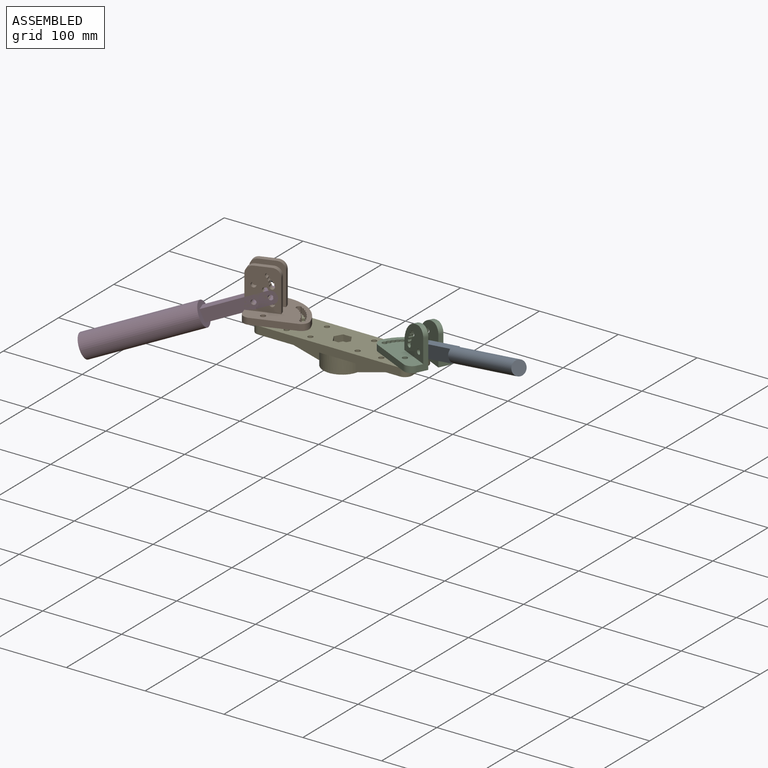
[diagram: assembled view]
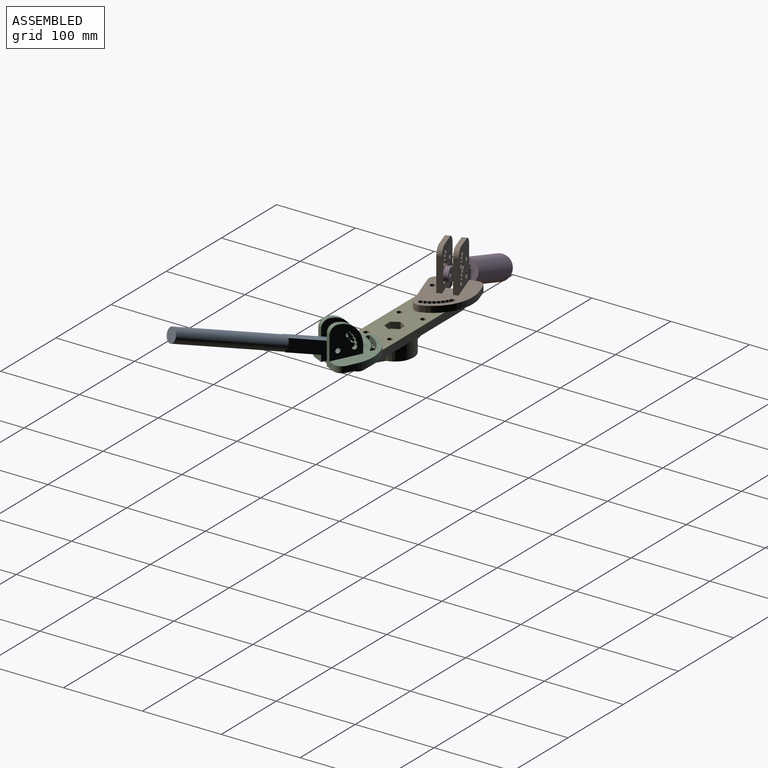
[diagram: assembled view, second angle]
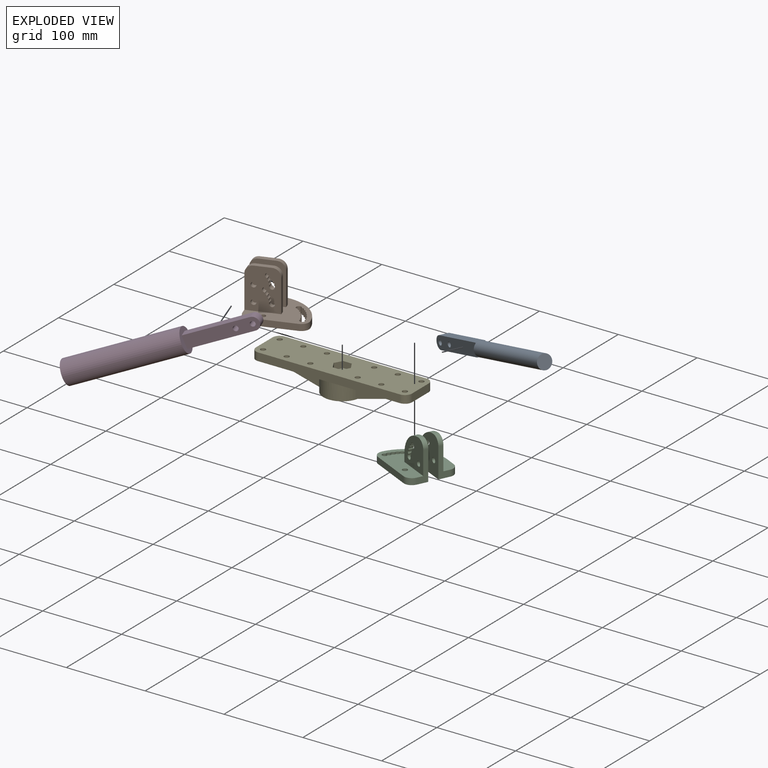
[diagram: exploded view]
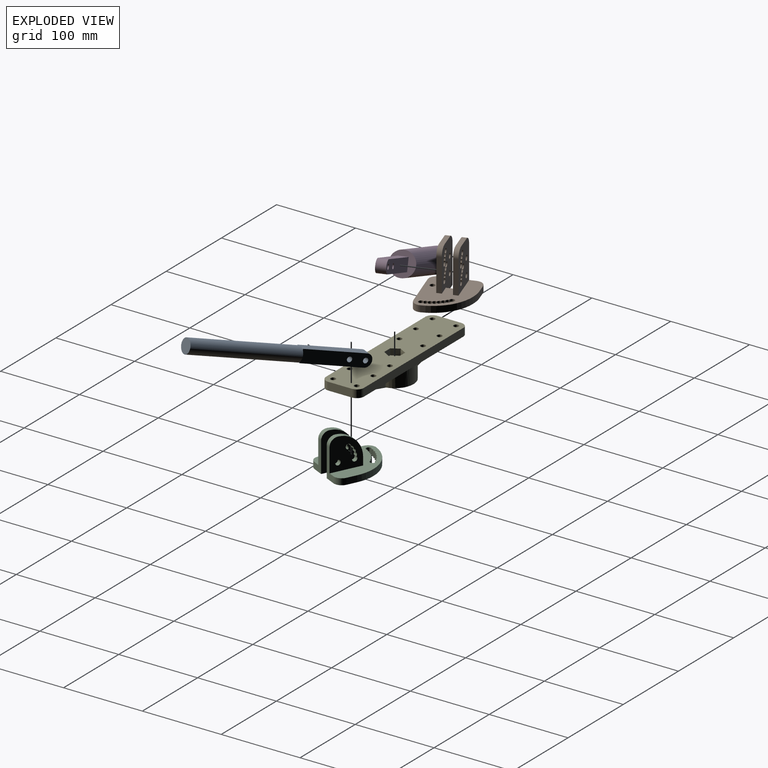
[diagram: exploded view, second angle]
ASSEMBLY  parts=5 mates=4
PART A: 17 faces, bbox 228x18x18 mm
  f0: plane 1.88x1.29mm, normal (1,0,0), area 1.1mm2, adj f3,f8,f13
  f1: plane 1.88x1.29mm, normal (1,0,0), area 1.1mm2, adj f3,f7,f13
  f2: plane 1.88x1.29mm, normal (1,0,0), area 1.1mm2, adj f5,f7,f13
  f3: plane 88x16mm, normal (0,1,0), area 1316.2mm2, adj f0,f1,f4,f6,f7,f8,f10,f16
  f4: cylinder r=8mm len=16mm, axis (0,-1,0), area 301.6mm2, adj f3,f5,f7,f8
  f5: plane 88x16mm, normal (0,-1,0), area 1316.2mm2, adj f2,f4,f6,f7,f8,f9,f12,f16
  f6: cylinder r=3.2mm len=12mm, axis (0,-1,0), area 241.3mm2, adj f3,f5
  f7: plane 80x12mm, normal (0,0,1), area 960mm2, adj f1,f2,f3,f4,f5,f11
  f8: plane 80x12mm, normal (0,0,-1), area 960mm2, adj f0,f3,f4,f5,f9,f15
  f9: plane 1.88x1.29mm, normal (1,0,0), area 1.1mm2, adj f5,f8,f13
  f10: plane 13.42x3mm, normal (-1,0,0), area 27.9mm2, adj f3,f13
  f11: plane 8.25x1mm, normal (-1,0,0), area 5.6mm2, adj f7,f13
  f12: plane 13.42x3mm, normal (-1,0,0), area 27.9mm2, adj f5,f13
  f13: cylinder r=9mm len=140mm, axis (-1,0,0), area 7916.8mm2, adj f0,f1,f2,f9,f10,f11,f12,f14
  f14: plane 18x18mm, normal (1,0,0), area 254.5mm2, adj f13
  f15: plane 8.25x1mm, normal (-1,0,0), area 5.6mm2, adj f8,f13
  f16: cylinder r=3.2mm len=12mm, axis (0,-1,0), area 241.3mm2, adj f3,f5
PART B: 70 faces, bbox 73.8x60x59.9 mm
  f0: plane 49.87x14mm, normal (-1,0,0), area 363.2mm2, adj f20,f24,f28,f60,f63,f69
  f1: plane 20x6mm, normal (0,0,1), area 120mm2, adj f27,f61,f65,f66
  f2: plane 41.87x6mm, normal (1,0,0), area 251.2mm2, adj f20,f28,f60,f64
  f3: cylinder r=3.2mm len=6.4mm, axis (0,-1,0), area 90.1mm2, adj f4,f5,f28,f60
  f4: cylinder r=3.2mm len=6mm, axis (0,-1,0), area 25.5mm2, adj f3,f7,f28,f60
  f5: cylinder r=3.2mm len=6mm, axis (0,-1,0), area 34.1mm2, adj f3,f6,f28,f60
  f6: cylinder r=3.2mm len=6mm, axis (0,-1,0), area 34.1mm2, adj f5,f9,f28,f60
  f7: cylinder r=3.2mm len=6mm, axis (0,-1,0), area 25.5mm2, adj f4,f8,f28,f60
  f8: cylinder r=3.2mm len=6mm, axis (0,-1,0), area 25.5mm2, adj f7,f10,f28,f60
  f9: cylinder r=3.2mm len=6mm, axis (0,-1,0), area 34.1mm2, adj f6,f10,f28,f60
  f10: cylinder r=3.2mm len=6.4mm, axis (0,-1,0), area 90.1mm2, adj f8,f9,f28,f60
  f11: cylinder r=3.2mm len=6.4mm, axis (0,-1,0), area 120.6mm2, adj f28,f60
  f12: cylinder r=3.2mm len=6.4mm, axis (0,-1,0), area 120.6mm2, adj f28,f60
  f13: cylinder r=3.2mm len=6mm, axis (0,-1,0), area 34.1mm2, adj f16,f18,f28,f60
  f14: cylinder r=3.2mm len=6mm, axis (0,-1,0), area 25.5mm2, adj f17,f18,f28,f60
  f15: cylinder r=3.2mm len=6.4mm, axis (0,-1,0), area 90.1mm2, adj f16,f17,f28,f60
  f16: cylinder r=3.2mm len=6mm, axis (0,-1,0), area 34.1mm2, adj f13,f15,f28,f60
  f17: cylinder r=3.2mm len=6mm, axis (0,-1,0), area 25.5mm2, adj f14,f15,f28,f60
  f18: cylinder r=3.2mm len=6.4mm, axis (0,-1,0), area 90.1mm2, adj f13,f14,f28,f60
  f19: plane 49.87x14mm, normal (-1,0,0), area 363.2mm2, adj f20,f24,f27,f61,f65,f68
  f20: plane 73.84x60mm, normal (0,0,1), area 2772.9mm2, adj f0,f2,f19,f21,f22,f23,f26,f27
  f21: cylinder r=51mm len=50.99mm, axis (0,0,1), area 630.9mm2, adj f20,f23,f24,f67
  f22: plane 53.84x8mm, normal (0,-1,0), area 430.7mm2, adj f20,f24,f67,f68
  f23: plane 12.86x8mm, normal (0,1,0), area 102.8mm2, adj f20,f21,f24,f69
  f24: plane 73.84x60mm, normal (0,0,-1), area 3252.9mm2, adj f0,f19,f21,f22,f23,f29,f30,f31
  f25: plane 20x6mm, normal (0,0,1), area 120mm2, adj f28,f60,f63,f64
  f26: plane 41.87x6mm, normal (1,0,0), area 251.2mm2, adj f20,f27,f61,f66
  f27: plane 51.87x40mm, normal (0,-1,0), area 1720.3mm2, adj f1,f19,f20,f26,f44,f45,f46,f47
  f28: plane 51.87x40mm, normal (0,1,0), area 1720.3mm2, adj f0,f2,f3,f4,f5,f6,f7,f8
  f29: cylinder r=3.2mm len=8mm, axis (0,0,1), area 123.3mm2, adj f20,f24,f30,f31
  f30: cylinder r=3.2mm len=8mm, axis (0,0,1), area 40mm2, adj f20,f24,f29,f34
  f31: cylinder r=3.2mm len=8mm, axis (0,0,1), area 45.8mm2, adj f20,f24,f29,f35
  f32: cylinder r=3.2mm len=8mm, axis (0,0,1), area 40mm2, adj f20,f24,f34,f36
  f33: cylinder r=3.2mm len=8mm, axis (0,0,1), area 45.8mm2, adj f20,f24,f35,f37
  f34: cylinder r=3.2mm len=8mm, axis (0,0,1), area 40mm2, adj f20,f24,f30,f32
  f35: cylinder r=3.2mm len=8mm, axis (0,0,1), area 45.8mm2, adj f20,f24,f31,f33
  f36: cylinder r=3.2mm len=8mm, axis (0,0,1), area 40mm2, adj f20,f24,f32,f38
  f37: cylinder r=3.2mm len=8mm, axis (0,0,1), area 45.8mm2, adj f20,f24,f33,f39
  f38: cylinder r=3.2mm len=8mm, axis (0,0,1), area 40mm2, adj f20,f24,f36,f40
  f39: cylinder r=3.2mm len=8mm, axis (0,0,1), area 45.8mm2, adj f20,f24,f37,f41
  f40: cylinder r=3.2mm len=8mm, axis (0,0,1), area 40mm2, adj f20,f24,f38,f42
  f41: cylinder r=3.2mm len=8mm, axis (0,0,1), area 45.8mm2, adj f20,f24,f39,f42
  f42: cylinder r=3.2mm len=8mm, axis (0,0,1), area 123.3mm2, adj f20,f24,f40,f41
  f43: cylinder r=3.2mm len=8mm, axis (0,0,1), area 160.8mm2, adj f20,f24
  f44: cylinder r=3.2mm len=6.4mm, axis (0,-1,0), area 90.1mm2, adj f27,f45,f46,f61
  f45: cylinder r=3.2mm len=6mm, axis (0,-1,0), area 25.5mm2, adj f27,f44,f48,f61
  f46: cylinder r=3.2mm len=6mm, axis (0,-1,0), area 34.1mm2, adj f27,f44,f47,f61
  f47: cylinder r=3.2mm len=6mm, axis (0,-1,0), area 34.1mm2, adj f27,f46,f50,f61
  f48: cylinder r=3.2mm len=6mm, axis (0,-1,0), area 25.5mm2, adj f27,f45,f49,f61
  f49: cylinder r=3.2mm len=6mm, axis (0,-1,0), area 25.5mm2, adj f27,f48,f51,f61
  f50: cylinder r=3.2mm len=6mm, axis (0,-1,0), area 34.1mm2, adj f27,f47,f51,f61
  f51: cylinder r=3.2mm len=6.4mm, axis (0,-1,0), area 90.1mm2, adj f27,f49,f50,f61
  f52: cylinder r=3.2mm len=6.4mm, axis (0,-1,0), area 120.6mm2, adj f27,f61
  f53: cylinder r=3.2mm len=6.4mm, axis (0,-1,0), area 120.6mm2, adj f27,f61
  f54: cylinder r=3.2mm len=6mm, axis (0,-1,0), area 34.1mm2, adj f27,f57,f59,f61
  f55: cylinder r=3.2mm len=6mm, axis (0,-1,0), area 25.5mm2, adj f27,f58,f59,f61
  f56: cylinder r=3.2mm len=6.4mm, axis (0,-1,0), area 90.1mm2, adj f27,f57,f58,f61
  f57: cylinder r=3.2mm len=6mm, axis (0,-1,0), area 34.1mm2, adj f27,f54,f56,f61
  f58: cylinder r=3.2mm len=6mm, axis (0,-1,0), area 25.5mm2, adj f27,f55,f56,f61
  f59: cylinder r=3.2mm len=6.4mm, axis (0,-1,0), area 90.1mm2, adj f27,f54,f55,f61
  f60: plane 59.87x40mm, normal (0,-1,0), area 1920.3mm2, adj f0,f2,f3,f4,f5,f6,f7,f8
  f61: plane 59.87x40mm, normal (0,1,0), area 1920.3mm2, adj f1,f19,f20,f24,f26,f44,f45,f46
  f62: plane 12x8mm, normal (-1,0,0), area 96mm2, adj f20,f24,f60,f61
  f63: cylinder r=10mm len=10mm, axis (0,-1,0), area 94.2mm2, adj f0,f25,f28,f60
  f64: cylinder r=10mm len=10mm, axis (0,-1,0), area 94.2mm2, adj f2,f25,f28,f60
  f65: cylinder r=10mm len=10mm, axis (0,-1,0), area 94.2mm2, adj f1,f19,f27,f61
  f66: cylinder r=10mm len=10mm, axis (0,-1,0), area 94.2mm2, adj f1,f26,f27,f61
  f67: cylinder r=10mm len=10.24mm, axis (0,0,1), area 127.6mm2, adj f20,f21,f22,f24
  f68: cylinder r=10mm len=10mm, axis (0,0,1), area 125.7mm2, adj f19,f20,f22,f24
  f69: cylinder r=10mm len=10mm, axis (0,0,1), area 125.7mm2, adj f0,f20,f23,f24
PART C: 54 faces, bbox 73.8x60x48 mm
  f0: plane 38x14mm, normal (1,0,0), area 292mm2, adj f13,f17,f21,f46,f49,f53
  f1: cylinder r=30mm len=30mm, axis (0,1,0), area 282.7mm2, adj f2,f21,f46,f49
  f2: plane 10x6mm, normal (-1,0,0), area 60mm2, adj f1,f13,f21,f46
  f3: cylinder r=3.2mm len=6.4mm, axis (0,-1,0), area 90.1mm2, adj f4,f5,f21,f46
  f4: cylinder r=3.2mm len=6mm, axis (0,-1,0), area 25.5mm2, adj f3,f7,f21,f46
  f5: cylinder r=3.2mm len=6mm, axis (0,-1,0), area 34.1mm2, adj f3,f6,f21,f46
  f6: cylinder r=3.2mm len=6mm, axis (0,-1,0), area 34.1mm2, adj f5,f9,f21,f46
  f7: cylinder r=3.2mm len=6mm, axis (0,-1,0), area 25.5mm2, adj f4,f8,f21,f46
  f8: cylinder r=3.2mm len=6mm, axis (0,-1,0), area 25.5mm2, adj f7,f10,f21,f46
  f9: cylinder r=3.2mm len=6mm, axis (0,-1,0), area 34.1mm2, adj f6,f10,f21,f46
  f10: cylinder r=3.2mm len=6.4mm, axis (0,-1,0), area 90.1mm2, adj f8,f9,f21,f46
  f11: cylinder r=3.2mm len=6.4mm, axis (0,-1,0), area 120.6mm2, adj f21,f46
  f12: plane 38x14mm, normal (1,0,0), area 292mm2, adj f13,f17,f20,f47,f50,f52
  f13: plane 73.84x60mm, normal (0,0,1), area 2772.9mm2, adj f0,f2,f12,f14,f15,f16,f19,f20
  f14: cylinder r=51mm len=50.99mm, axis (0,0,1), area 630.9mm2, adj f13,f16,f17,f51
  f15: plane 53.84x8mm, normal (0,-1,0), area 430.7mm2, adj f13,f17,f51,f52
  f16: plane 12.86x8mm, normal (0,1,0), area 102.8mm2, adj f13,f14,f17,f53
  f17: plane 73.84x60mm, normal (0,0,-1), area 3252.9mm2, adj f0,f12,f14,f15,f16,f22,f23,f24
  f18: cylinder r=30mm len=30mm, axis (0,1,0), area 282.7mm2, adj f19,f20,f47,f50
  f19: plane 10x6mm, normal (-1,0,0), area 60mm2, adj f13,f18,f20,f47
  f20: plane 40x40mm, normal (0,-1,0), area 1216.6mm2, adj f12,f13,f18,f19,f37,f38,f39,f40
  f21: plane 40x40mm, normal (0,1,0), area 1216.6mm2, adj f0,f1,f2,f3,f4,f5,f6,f7
  f22: cylinder r=3.2mm len=8mm, axis (0,0,1), area 123.3mm2, adj f13,f17,f23,f24
  f23: cylinder r=3.2mm len=8mm, axis (0,0,1), area 40mm2, adj f13,f17,f22,f27
  f24: cylinder r=3.2mm len=8mm, axis (0,0,1), area 45.8mm2, adj f13,f17,f22,f28
  f25: cylinder r=3.2mm len=8mm, axis (0,0,1), area 40mm2, adj f13,f17,f27,f29
  f26: cylinder r=3.2mm len=8mm, axis (0,0,1), area 45.8mm2, adj f13,f17,f28,f30
  f27: cylinder r=3.2mm len=8mm, axis (0,0,1), area 40mm2, adj f13,f17,f23,f25
  f28: cylinder r=3.2mm len=8mm, axis (0,0,1), area 45.8mm2, adj f13,f17,f24,f26
  f29: cylinder r=3.2mm len=8mm, axis (0,0,1), area 40mm2, adj f13,f17,f25,f31
  f30: cylinder r=3.2mm len=8mm, axis (0,0,1), area 45.8mm2, adj f13,f17,f26,f32
  f31: cylinder r=3.2mm len=8mm, axis (0,0,1), area 40mm2, adj f13,f17,f29,f33
  f32: cylinder r=3.2mm len=8mm, axis (0,0,1), area 45.8mm2, adj f13,f17,f30,f34
  f33: cylinder r=3.2mm len=8mm, axis (0,0,1), area 40mm2, adj f13,f17,f31,f35
  f34: cylinder r=3.2mm len=8mm, axis (0,0,1), area 45.8mm2, adj f13,f17,f32,f35
  f35: cylinder r=3.2mm len=8mm, axis (0,0,1), area 123.3mm2, adj f13,f17,f33,f34
  f36: cylinder r=3.2mm len=8mm, axis (0,0,1), area 160.8mm2, adj f13,f17
  f37: cylinder r=3.2mm len=6.4mm, axis (0,-1,0), area 90.1mm2, adj f20,f38,f39,f47
  f38: cylinder r=3.2mm len=6mm, axis (0,-1,0), area 25.5mm2, adj f20,f37,f41,f47
  f39: cylinder r=3.2mm len=6mm, axis (0,-1,0), area 34.1mm2, adj f20,f37,f40,f47
  f40: cylinder r=3.2mm len=6mm, axis (0,-1,0), area 34.1mm2, adj f20,f39,f43,f47
  f41: cylinder r=3.2mm len=6mm, axis (0,-1,0), area 25.5mm2, adj f20,f38,f42,f47
  f42: cylinder r=3.2mm len=6mm, axis (0,-1,0), area 25.5mm2, adj f20,f41,f44,f47
  f43: cylinder r=3.2mm len=6mm, axis (0,-1,0), area 34.1mm2, adj f20,f40,f44,f47
  f44: cylinder r=3.2mm len=6.4mm, axis (0,-1,0), area 90.1mm2, adj f20,f42,f43,f47
  f45: cylinder r=3.2mm len=6.4mm, axis (0,-1,0), area 120.6mm2, adj f20,f47
  f46: plane 48x40mm, normal (0,-1,0), area 1416.6mm2, adj f0,f1,f2,f3,f4,f5,f6,f7
  f47: plane 48x40mm, normal (0,1,0), area 1416.6mm2, adj f12,f13,f17,f18,f19,f37,f38,f39
  f48: plane 12x8mm, normal (1,0,0), area 96mm2, adj f13,f17,f46,f47
  f49: cylinder r=10mm len=10mm, axis (0,-1,0), area 94.2mm2, adj f0,f1,f21,f46
  f50: cylinder r=10mm len=10mm, axis (0,-1,0), area 94.2mm2, adj f12,f18,f20,f47
  f51: cylinder r=10mm len=10.24mm, axis (0,0,1), area 127.6mm2, adj f13,f14,f15,f17
  f52: cylinder r=10mm len=10mm, axis (0,0,1), area 125.7mm2, adj f12,f13,f15,f17
  f53: cylinder r=10mm len=10mm, axis (0,0,1), area 125.7mm2, adj f0,f13,f16,f17
PART D: 10 faces, bbox 228x30x30 mm
  f0: plane 88x16mm, normal (0,1,0), area 1316.2mm2, adj f1,f3,f4,f5,f8,f9
  f1: cylinder r=8mm len=16mm, axis (0,-1,0), area 301.6mm2, adj f0,f2,f4,f5
  f2: plane 88x16mm, normal (0,-1,0), area 1316.2mm2, adj f1,f3,f4,f5,f8,f9
  f3: cylinder r=3.2mm len=12mm, axis (0,-1,0), area 241.3mm2, adj f0,f2
  f4: plane 80x12mm, normal (0,0,1), area 960mm2, adj f0,f1,f2,f8
  f5: plane 80x12mm, normal (0,0,-1), area 960mm2, adj f0,f1,f2,f8
  f6: cylinder r=15mm len=140mm, axis (-1,0,0), area 13194.7mm2, adj f7,f8
  f7: plane 30x30mm, normal (1,0,0), area 706.9mm2, adj f6
  f8: plane 30x30mm, normal (-1,0,0), area 514.9mm2, adj f0,f2,f4,f5,f6
  f9: cylinder r=3.2mm len=12mm, axis (0,-1,0), area 241.3mm2, adj f0,f2
PART E: 42 faces, bbox 198x48x30 mm
  f0: cylinder r=24mm len=46.95mm, axis (0,0,-1), area 1306.5mm2, adj f2,f26,f34,f38,f41
  f1: plane 99x19mm, normal (0,0,-1), area 1433.8mm2, adj f10,f12,f14,f20,f23,f32,f33,f40
  f2: plane 99x19mm, normal (0,0,-1), area 1433.8mm2, adj f0,f3,f5,f7,f21,f22,f30,f38
  f3: cylinder r=3.2mm len=10mm, axis (0,0,-1), area 201.1mm2, adj f2,f25
  f4: cylinder r=3.2mm len=10mm, axis (0,0,-1), area 201.1mm2, adj f25,f35
  f5: cylinder r=3.2mm len=10mm, axis (0,0,-1), area 201.1mm2, adj f2,f25
  f6: cylinder r=3.2mm len=10mm, axis (0,0,-1), area 201.1mm2, adj f25,f35
  f7: cylinder r=3.2mm len=10mm, axis (0,0,-1), area 201.1mm2, adj f2,f25
  f8: cylinder r=3.2mm len=10mm, axis (0,0,-1), area 201.1mm2, adj f25,f35
  f9: cylinder r=3.2mm len=10mm, axis (0,0,-1), area 201.1mm2, adj f25,f34
  f10: cylinder r=3.2mm len=10mm, axis (0,0,-1), area 201.1mm2, adj f1,f25
  f11: cylinder r=3.2mm len=10mm, axis (0,0,-1), area 201.1mm2, adj f25,f34
  f12: cylinder r=3.2mm len=10mm, axis (0,0,-1), area 201.1mm2, adj f1,f25
  f13: cylinder r=3.2mm len=10mm, axis (0,0,-1), area 201.1mm2, adj f25,f34
  f14: cylinder r=3.2mm len=10mm, axis (0,0,-1), area 201.1mm2, adj f1,f25
  f15: plane 9.44x8mm, normal (-0.87,-0.5,0), area 87.2mm2, adj f16,f24,f25,f28
  f16: plane 9.44x8mm, normal (-0.87,0.5,0), area 87.2mm2, adj f15,f17,f25,f28
  f17: plane 10.9x8mm, normal (0,1,0), area 87.2mm2, adj f16,f18,f25,f28
  f18: plane 9.44x8mm, normal (0.87,0.5,0), area 87.2mm2, adj f17,f19,f25,f28
  f19: plane 9.44x8mm, normal (0.87,-0.5,0), area 87.2mm2, adj f18,f24,f25,f28
  f20: plane 30x10mm, normal (1,0,0), area 300mm2, adj f1,f25,f29,f32,f34,f39
  f21: plane 180x10mm, normal (0,1,0), area 1800mm2, adj f2,f25,f29,f30,f34
  f22: plane 30x10mm, normal (-1,0,0), area 300mm2, adj f2,f25,f30,f31,f35,f36
  f23: plane 180x10mm, normal (0,-1,0), area 1800mm2, adj f1,f25,f31,f32,f35
  f24: plane 10.9x8mm, normal (0,-1,0), area 87.2mm2, adj f15,f19,f25,f28
  f25: plane 198x48mm, normal (0,0,1), area 8739.8mm2, adj f3,f4,f5,f6,f7,f8,f9,f10
  f26: plane 48x48mm, normal (0,0,-1), area 1700mm2, adj f0,f27,f33,f36,f37,f38,f39,f40
  f27: cylinder r=6mm len=22mm, axis (0,0,-1), area 829.4mm2, adj f26,f28
  f28: plane 21.8x18.88mm, normal (0,0,1), area 195.6mm2, adj f15,f16,f17,f18,f19,f24,f27
  f29: cylinder r=9mm len=10mm, axis (0,0,1), area 141.4mm2, adj f20,f21,f25,f34
  f30: cylinder r=9mm len=10mm, axis (0,0,-1), area 141.4mm2, adj f2,f21,f22,f25
  f31: cylinder r=9mm len=10mm, axis (0,0,1), area 141.4mm2, adj f22,f23,f25,f35
  f32: cylinder r=9mm len=10mm, axis (0,0,-1), area 141.4mm2, adj f1,f20,f23,f25
  f33: cylinder r=24mm len=46.95mm, axis (0,0,-1), area 1306.5mm2, adj f1,f26,f35,f37,f40
  f34: plane 99x19mm, normal (0,0,-1), area 1433.8mm2, adj f0,f9,f11,f13,f20,f21,f29,f41
  f35: plane 99x19mm, normal (0,0,-1), area 1433.8mm2, adj f4,f6,f8,f22,f23,f31,f33,f37
  f36: plane 75x20mm, normal (-0.26,0,-0.97), area 776.2mm2, adj f22,f26,f37,f38
  f37: plane 75.53x20mm, normal (0,-1,0), area 760.5mm2, adj f26,f33,f35,f36
  f38: plane 75.53x20mm, normal (0,1,0), area 760.5mm2, adj f0,f2,f26,f36
  f39: plane 75x20mm, normal (0.26,0,-0.97), area 776.2mm2, adj f20,f26,f40,f41
  f40: plane 75.53x20mm, normal (0,-1,0), area 760.5mm2, adj f1,f26,f33,f39
  f41: plane 75.53x20mm, normal (0,1,0), area 760.5mm2, adj f0,f26,f34,f39
PLACE A rot(axis=(-0.12,-0.53,-0.84),30.4deg) t=(31.49,29.77,-23.24)mm
PLACE B rot(axis=(0,0,1),19deg) t=(-9.77,28.45,4)mm
PLACE C rot(axis=(0,0,-1),25.7deg) t=(15.39,37.52,4)mm
PLACE D rot(axis=(-0.16,0.99,0.03),157.8deg) t=(-32.55,14.27,135.67)mm
PLACE E t=(0,0,4)mm fixed
MATE revolute C.f1 <-> A.f6  axis (-0.43,-0.9,0) through (105.49,-12.46,52)mm
MATE revolute E.f14 <-> C.f14  axis (0,0,1) through (90,-15,34)mm
MATE revolute B.f21 <-> E.f4  axis (0,0,1) through (-90,-15,42)mm
MATE revolute D.f3 <-> B.f12  axis (0.33,-0.95,0) through (-105.08,-10.67,52)mm
